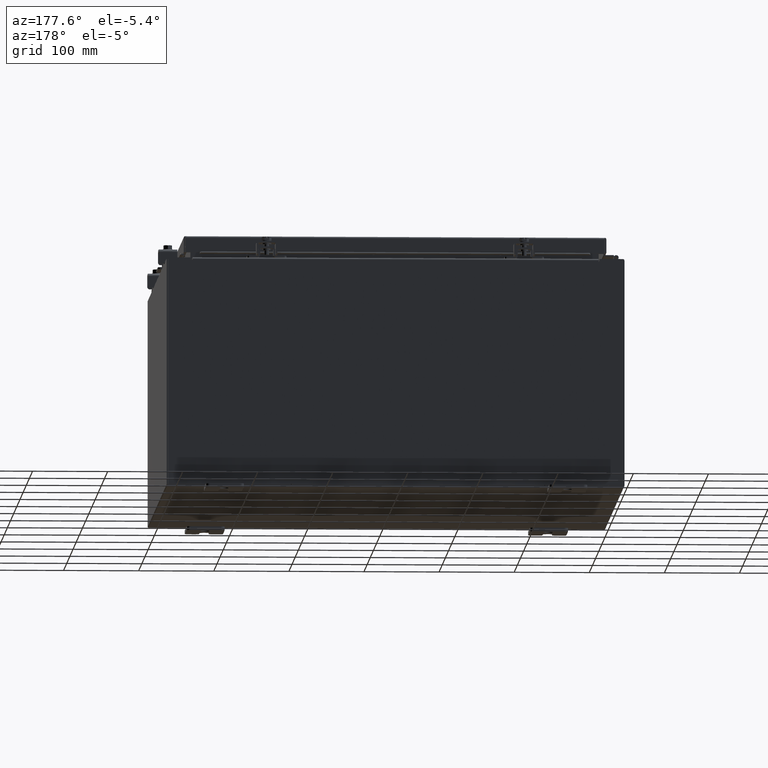
[diagram: clean part render]
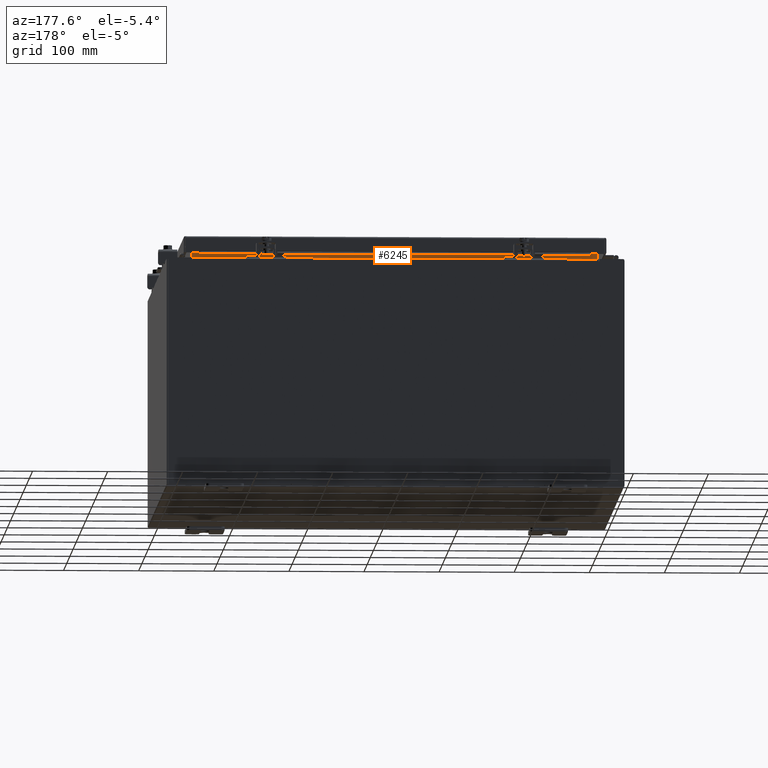
[diagram: same view with one face highlighted and labeled with its STEP entity id]
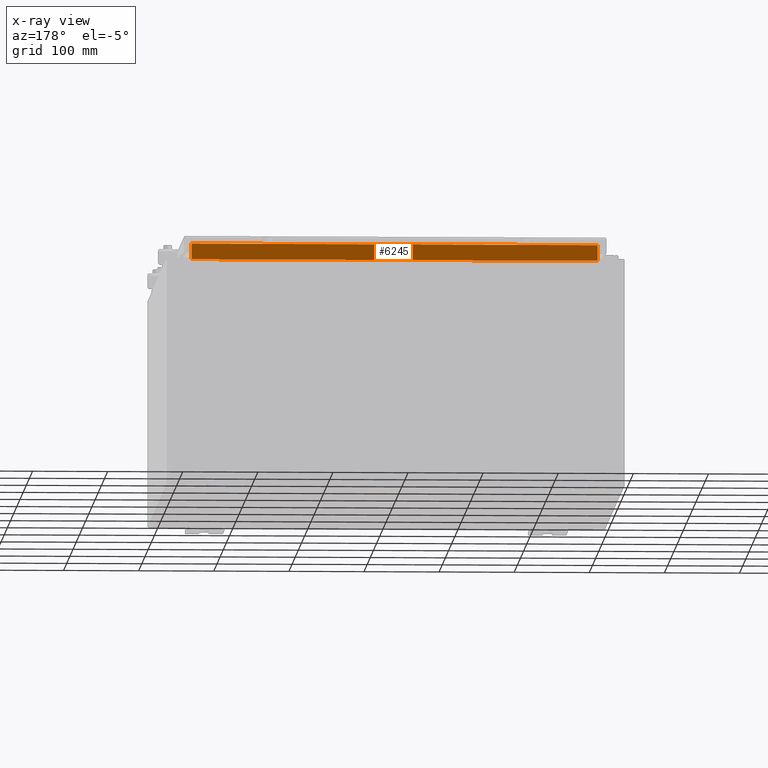
[diagram: x-ray of the same camera — body ghosted, the highlighted face saturated]
A machine part, auxiliary view. The second image highlights one B-rep face of the part: STEP entity #6245.
The next image is the same camera in x-ray: the body ghosted, the highlighted face saturated — about 0% of this face is hidden behind the body in this view.
In plain terms, the highlighted planar face has unit normal (-0, 1, 0).
Its self-contained STEP definition (entity closure, byte-faithful):
#142 = EDGE_CURVE ( 'NONE', #8617, #10107, #7645, .T. ) ;
#1808 = CARTESIAN_POINT ( 'NONE',  ( 10.63720000000000400, -1.300299999999999800, 6.013000000000005200 ) ) ;
#2919 = CARTESIAN_POINT ( 'NONE',  ( 1.183117784283575500E-031, -1.300299999999994700, -1.151698458714456500E-015 ) ) ;
#2924 = AXIS2_PLACEMENT_3D ( 'NONE', #2919, #27818, #27898 ) ;
#3711 = DIRECTION ( 'NONE',  ( -0.0000000000000000000, -8.857174949738224200E-016, 1.000000000000000000 ) ) ;
#6166 = DIRECTION ( 'NONE',  ( 1.000000000000000000, 1.027280861002618300E-016, 1.027280861002618300E-016 ) ) ;
#6245 = ADVANCED_FACE ( 'NONE', ( #28699 ), #6970, .T. ) ;
#6871 = EDGE_CURVE ( 'NONE', #10107, #9289, #18128, .T. ) ;
#6970 = PLANE ( 'NONE',  #2924 ) ;
#7559 = CARTESIAN_POINT ( 'NONE',  ( -10.63720000000000200, -1.300299999999999800, 6.000000000000003600 ) ) ;
#7645 = LINE ( 'NONE', #28793, #13505 ) ;
#8617 = VERTEX_POINT ( 'NONE', #1808 ) ;
#9289 = VERTEX_POINT ( 'NONE', #22913 ) ;
#9423 = EDGE_CURVE ( 'NONE', #9289, #21108, #23874, .T. ) ;
#10107 = VERTEX_POINT ( 'NONE', #22595 ) ;
#10600 = VECTOR ( 'NONE', #6166, 39.37007874015748100 ) ;
#11537 = VECTOR ( 'NONE', #15579, 39.37007874015748100 ) ;
#13505 = VECTOR ( 'NONE', #3711, 39.37007874015748100 ) ;
#13917 = EDGE_LOOP ( 'NONE', ( #32335, #30290, #21767, #20792 ) ) ;
#15579 = DIRECTION ( 'NONE',  ( -1.000000000000000000, -0.0000000000000000000, -0.0000000000000000000 ) ) ;
#16996 = DIRECTION ( 'NONE',  ( -0.0000000000000000000, 8.857174949738214300E-016, -1.000000000000000000 ) ) ;
#17217 = VECTOR ( 'NONE', #16996, 39.37007874015748100 ) ;
#17846 = CARTESIAN_POINT ( 'NONE',  ( -10.63720000000000400, -1.300299999999999800, 6.013000000000005200 ) ) ;
#18128 = LINE ( 'NONE', #21479, #11537 ) ;
#20792 = ORIENTED_EDGE ( 'NONE', *, *, #25827, .F. ) ;
#21108 = VERTEX_POINT ( 'NONE', #17846 ) ;
#21479 = CARTESIAN_POINT ( 'NONE',  ( 10.63719999999999600, -1.300300000000000900, 6.837600000000007200 ) ) ;
#21767 = ORIENTED_EDGE ( 'NONE', *, *, #142, .F. ) ;
#22595 = CARTESIAN_POINT ( 'NONE',  ( 10.63720000000000200, -1.300300000000000700, 6.837600000000007200 ) ) ;
#22913 = CARTESIAN_POINT ( 'NONE',  ( -10.63719999999998800, -1.300300000000000900, 6.837600000000007200 ) ) ;
#23623 = CARTESIAN_POINT ( 'NONE',  ( -10.63720000000000200, -1.300299999999999800, 6.013000000000003500 ) ) ;
#23843 = LINE ( 'NONE', #23623, #10600 ) ;
#23874 = LINE ( 'NONE', #7559, #17217 ) ;
#25827 = EDGE_CURVE ( 'NONE', #21108, #8617, #23843, .T. ) ;
#27818 = DIRECTION ( 'NONE',  ( -9.098806308417904000E-032, 1.000000000000000000, 8.857174949738224200E-016 ) ) ;
#27898 = DIRECTION ( 'NONE',  ( 0.0000000000000000000, -8.857174949738224200E-016, 1.000000000000000000 ) ) ;
#28699 = FACE_OUTER_BOUND ( 'NONE', #13917, .T. ) ;
#28793 = CARTESIAN_POINT ( 'NONE',  ( 10.63720000000000200, -1.300300000000000700, 6.925300000000007100 ) ) ;
#30290 = ORIENTED_EDGE ( 'NONE', *, *, #6871, .F. ) ;
#32335 = ORIENTED_EDGE ( 'NONE', *, *, #9423, .F. ) ;